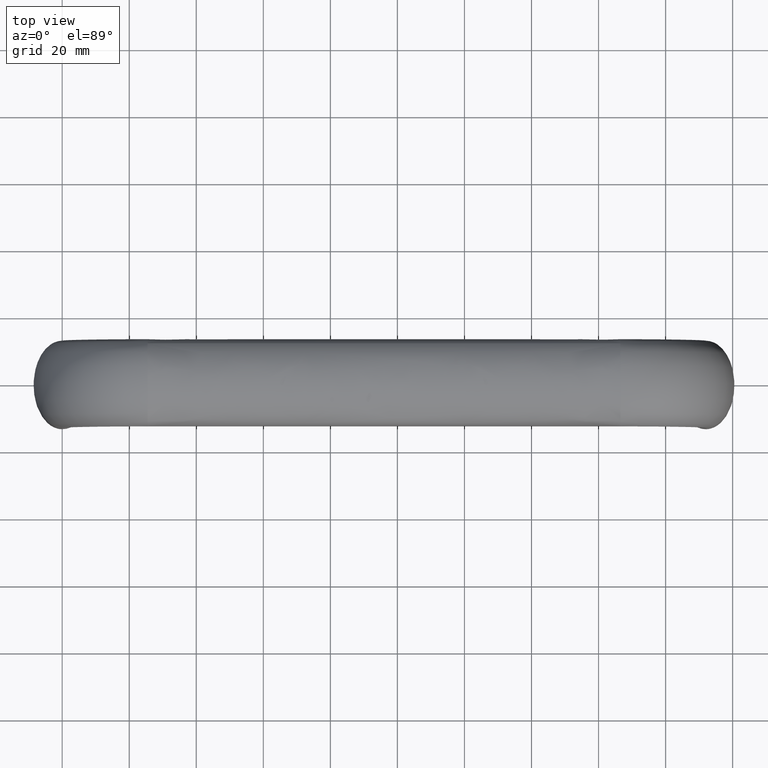
[diagram: clean part render]
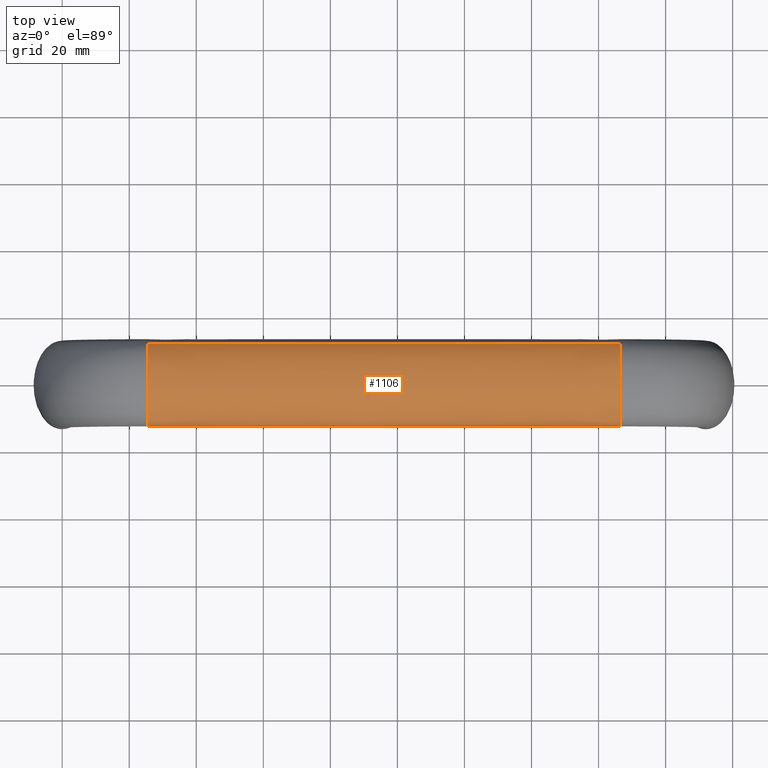
[diagram: same view with one face highlighted and labeled with its STEP entity id]
A machine part, top view. The second image highlights one B-rep face of the part: STEP entity #1106.
In plain terms, the highlighted face is a freeform B-spline surface patch.
Its self-contained STEP definition (entity closure, byte-faithful):
#876=CARTESIAN_POINT('',(166.500000000000000,11.762630262037840,52.119082295067372));
#877=VERTEX_POINT('',#876);
#887=CARTESIAN_POINT('',(166.500000000000000,-13.0,48.500007999999987));
#888=VERTEX_POINT('',#887);
#889=CARTESIAN_POINT('',(166.500000000000000,11.762630262037840,52.119082295067372));
#890=CARTESIAN_POINT('',(166.500000000000000,11.124518000658959,53.004813718209860));
#891=CARTESIAN_POINT('',(166.500000000000000,10.251275255620961,53.818066382265307));
#892=CARTESIAN_POINT('',(166.500000000000000,6.785826563922671,56.083936680683401));
#893=CARTESIAN_POINT('',(166.500000000000000,3.403392041388941,57.000008000000001));
#894=CARTESIAN_POINT('',(166.500000000000000,-3.403392041388945,57.000008000000001));
#895=CARTESIAN_POINT('',(166.500000000000000,-6.785826563922671,56.083936680683401));
#896=CARTESIAN_POINT('',(166.500000000000000,-10.395668951176340,53.723655119786798));
#897=CARTESIAN_POINT('',(166.500000000000000,-11.359223048605340,52.780769333152712));
#898=CARTESIAN_POINT('',(166.500000000000000,-12.661644796688099,50.724865017053901));
#899=CARTESIAN_POINT('',(166.500000000000000,-13.0,49.612655398146401));
#900=CARTESIAN_POINT('',(166.500000000000000,-13.0,48.500007999999987));
#901=B_SPLINE_CURVE_WITH_KNOTS('',3,(#889,#890,#891,#892,#893,#894,#895,#896,#897,#898,#899,#900),.UNSPECIFIED.,.F.,.U.,(4,2,2,2,2,4),(0.570000000003388,0.625000000000000,0.750000000000000,0.875000000000000,0.937500000000000,1.0),.UNSPECIFIED.);
#902=EDGE_CURVE('',#877,#888,#901,.T.);
#1021=CARTESIAN_POINT('',(25.500000000000000,11.762630262096810,52.119082294985532));
#1022=CARTESIAN_POINT('',(25.500000000000000,11.124518000766560,53.004813718109659));
#1023=CARTESIAN_POINT('',(25.500000000000000,10.251275255686201,53.818066382222661));
#1024=CARTESIAN_POINT('',(25.500000000000000,6.785826563922671,56.083936680683401));
#1025=CARTESIAN_POINT('',(25.500000000000000,3.403392041388941,57.000008000000001));
#1026=CARTESIAN_POINT('',(25.500000000000000,-3.403392041388945,57.000008000000001));
#1027=CARTESIAN_POINT('',(25.500000000000000,-6.785826563922671,56.083936680683401));
#1028=CARTESIAN_POINT('',(25.500000000000000,-10.395668951176340,53.723655119786798));
#1029=CARTESIAN_POINT('',(25.500000000000000,-11.359223048605340,52.780769333152712));
#1030=CARTESIAN_POINT('',(25.500000000000000,-12.661644796688099,50.724865017053901));
#1031=CARTESIAN_POINT('',(25.500000000000000,-13.0,49.612655398146401));
#1032=CARTESIAN_POINT('',(25.500000000000000,-13.0,48.500007999999987));
#1033=CARTESIAN_POINT('',(72.499999963886836,11.762630262096810,52.119573459018447));
#1034=CARTESIAN_POINT('',(72.499999962859960,11.124518000766560,53.005311873256503));
#1035=CARTESIAN_POINT('',(72.499999961942763,10.251275255686201,53.818570650770511));
#1036=CARTESIAN_POINT('',(72.499999959465399,6.785826563922671,56.084457115461802));
#1037=CARTESIAN_POINT('',(72.499999958497710,3.403392041388941,57.000534610608803));
#1038=CARTESIAN_POINT('',(72.499999958497710,-3.403392041388945,57.000534610608803));
#1039=CARTESIAN_POINT('',(72.499999959465399,-6.785826563922671,56.084457115461802));
#1040=CARTESIAN_POINT('',(72.499999962046203,-10.395668951176340,53.724158714889597));
#1041=CARTESIAN_POINT('',(72.499999963113098,-11.359223048605340,52.781265799182997));
#1042=CARTESIAN_POINT('',(72.499999965512700,-12.661644796688099,50.725345062661702));
#1043=CARTESIAN_POINT('',(72.499999966853395,-13.0,49.613126020547099));
#1044=CARTESIAN_POINT('',(72.499999968239862,-13.0,48.500468564901702));
#1045=CARTESIAN_POINT('',(119.500000036113090,11.762630262096810,52.119573459018447));
#1046=CARTESIAN_POINT('',(119.500000037139900,11.124518000766560,53.005311873256503));
#1047=CARTESIAN_POINT('',(119.500000038057190,10.251275255686201,53.818570650770511));
#1048=CARTESIAN_POINT('',(119.500000040534600,6.785826563922671,56.084457115461802));
#1049=CARTESIAN_POINT('',(119.500000041502200,3.403392041388941,57.000534610608803));
#1050=CARTESIAN_POINT('',(119.500000041502200,-3.403392041388945,57.000534610608803));
#1051=CARTESIAN_POINT('',(119.500000040534600,-6.785826563922671,56.084457115461802));
#1052=CARTESIAN_POINT('',(119.500000037953600,-10.395668951176340,53.724158714889697));
#1053=CARTESIAN_POINT('',(119.500000036886800,-11.359223048605340,52.781265799182997));
#1054=CARTESIAN_POINT('',(119.500000034487200,-12.661644796688099,50.725345062661702));
#1055=CARTESIAN_POINT('',(119.500000033146610,-13.0,49.613126020547099));
#1056=CARTESIAN_POINT('',(119.500000031760090,-13.0,48.500468564901702));
#1057=CARTESIAN_POINT('',(166.500000000000000,11.762630262096810,52.119082294985532));
#1058=CARTESIAN_POINT('',(166.500000000000000,11.124518000766560,53.004813718109659));
#1059=CARTESIAN_POINT('',(166.500000000000000,10.251275255686201,53.818066382222661));
#1060=CARTESIAN_POINT('',(166.500000000000000,6.785826563922671,56.083936680683401));
#1061=CARTESIAN_POINT('',(166.500000000000000,3.403392041388941,57.000008000000001));
#1062=CARTESIAN_POINT('',(166.500000000000000,-3.403392041388945,57.000008000000001));
#1063=CARTESIAN_POINT('',(166.500000000000000,-6.785826563922671,56.083936680683401));
#1064=CARTESIAN_POINT('',(166.500000000000000,-10.395668951176340,53.723655119786798));
#1065=CARTESIAN_POINT('',(166.500000000000000,-11.359223048605340,52.780769333152712));
#1066=CARTESIAN_POINT('',(166.500000000000000,-12.661644796688099,50.724865017053901));
#1067=CARTESIAN_POINT('',(166.500000000000000,-13.0,49.612655398146401));
#1068=CARTESIAN_POINT('',(166.500000000000000,-13.0,48.500007999999987));
#1069=B_SPLINE_SURFACE_WITH_KNOTS('',3,3,((#1021,#1033,#1045,#1057),(#1022,#1034,#1046,#1058),(#1023,#1035,#1047,#1059),(#1024,#1036,#1048,#1060),(#1025,#1037,#1049,#1061),(#1026,#1038,#1050,#1062),(#1027,#1039,#1051,#1063),(#1028,#1040,#1052,#1064),(#1029,#1041,#1053,#1065),(#1030,#1042,#1054,#1066),(#1031,#1043,#1055,#1067),(#1032,#1044,#1056,#1068)),.UNSPECIFIED.,.F.,.F.,.U.,(4,2,2,2,2,4),(4,4),(0.0,4.401538644994276,14.405035565435799,24.408532485877330,29.410280946098091,34.412029406318858),(0.0,141.000000042163610),.UNSPECIFIED.);
#1070=ORIENTED_EDGE('',*,*,#902,.F.);
#1071=CARTESIAN_POINT('',(25.500000000000000,11.762630262037840,52.119082295067372));
#1072=VERTEX_POINT('',#1071);
#1073=CARTESIAN_POINT('',(25.500000000000000,11.762630262037840,52.119082295067372));
#1074=CARTESIAN_POINT('',(72.499999963886836,11.762630262096810,52.119573459018447));
#1075=CARTESIAN_POINT('',(119.500000036113090,11.762630262096810,52.119573459018447));
#1076=CARTESIAN_POINT('',(166.500000000000000,11.762630262037840,52.119082295067372));
#1077=B_SPLINE_CURVE_WITH_KNOTS('',3,(#1073,#1074,#1075,#1076),.UNSPECIFIED.,.F.,.U.,(4,4),(0.236064415137849,0.763935584862151),.UNSPECIFIED.);
#1078=EDGE_CURVE('',#1072,#877,#1077,.T.);
#1079=ORIENTED_EDGE('',*,*,#1078,.F.);
#1080=CARTESIAN_POINT('',(25.500000000000011,-13.0,48.500007999999987));
#1081=VERTEX_POINT('',#1080);
#1082=CARTESIAN_POINT('',(25.500000000000000,11.762630262037840,52.119082295067372));
#1083=CARTESIAN_POINT('',(25.500000000000000,11.124518000658959,53.004813718209860));
#1084=CARTESIAN_POINT('',(25.500000000000000,10.251275255620961,53.818066382265307));
#1085=CARTESIAN_POINT('',(25.500000000000000,6.785826563922671,56.083936680683401));
#1086=CARTESIAN_POINT('',(25.500000000000000,3.403392041388941,57.000008000000001));
#1087=CARTESIAN_POINT('',(25.500000000000000,-3.403392041388945,57.000008000000001));
#1088=CARTESIAN_POINT('',(25.500000000000000,-6.785826563922671,56.083936680683401));
#1089=CARTESIAN_POINT('',(25.500000000000000,-10.395668951176340,53.723655119786798));
#1090=CARTESIAN_POINT('',(25.500000000000000,-11.359223048605340,52.780769333152712));
#1091=CARTESIAN_POINT('',(25.500000000000000,-12.661644796688099,50.724865017053901));
#1092=CARTESIAN_POINT('',(25.500000000000000,-13.0,49.612655398146401));
#1093=CARTESIAN_POINT('',(25.500000000000000,-13.0,48.500007999999987));
#1094=B_SPLINE_CURVE_WITH_KNOTS('',3,(#1082,#1083,#1084,#1085,#1086,#1087,#1088,#1089,#1090,#1091,#1092,#1093),.UNSPECIFIED.,.F.,.U.,(4,2,2,2,2,4),(0.570000000003388,0.625000000000000,0.750000000000000,0.875000000000000,0.937500000000000,1.0),.UNSPECIFIED.);
#1095=EDGE_CURVE('',#1072,#1081,#1094,.T.);
#1096=ORIENTED_EDGE('',*,*,#1095,.T.);
#1097=CARTESIAN_POINT('',(25.500000000000000,-13.0,48.500007999999987));
#1098=CARTESIAN_POINT('',(72.499999968239862,-13.0,48.500468564901702));
#1099=CARTESIAN_POINT('',(119.500000031760090,-13.0,48.500468564901702));
#1100=CARTESIAN_POINT('',(166.500000000000000,-13.0,48.500007999999987));
#1101=B_SPLINE_CURVE_WITH_KNOTS('',3,(#1097,#1098,#1099,#1100),.UNSPECIFIED.,.F.,.U.,(4,4),(0.236064415137849,0.763935584862151),.UNSPECIFIED.);
#1102=EDGE_CURVE('',#1081,#888,#1101,.T.);
#1103=ORIENTED_EDGE('',*,*,#1102,.T.);
#1104=EDGE_LOOP('',(#1070,#1079,#1096,#1103));
#1105=FACE_OUTER_BOUND('',#1104,.T.);
#1106=ADVANCED_FACE('',(#1105),#1069,.T.);